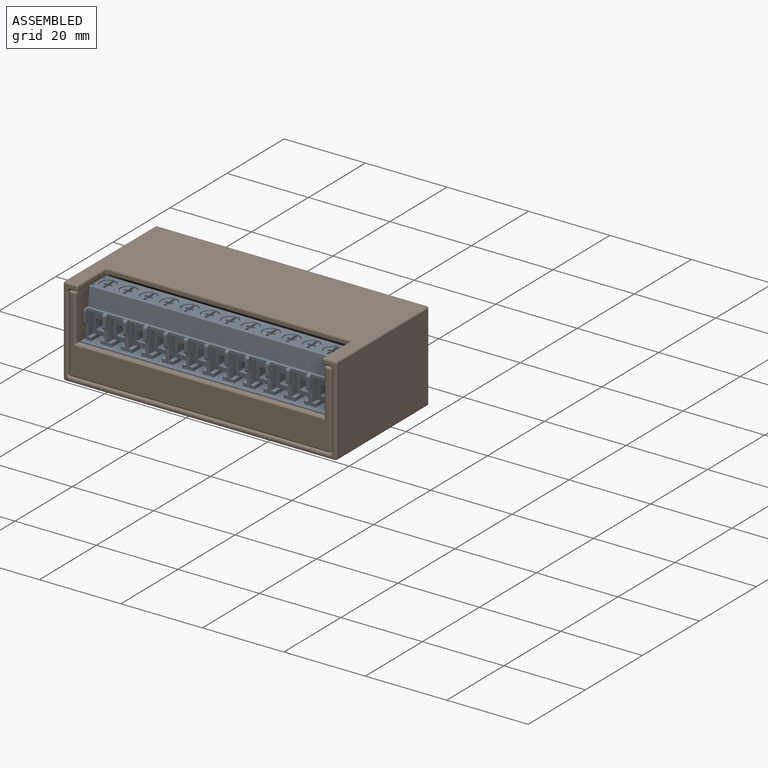
[diagram: assembled view]
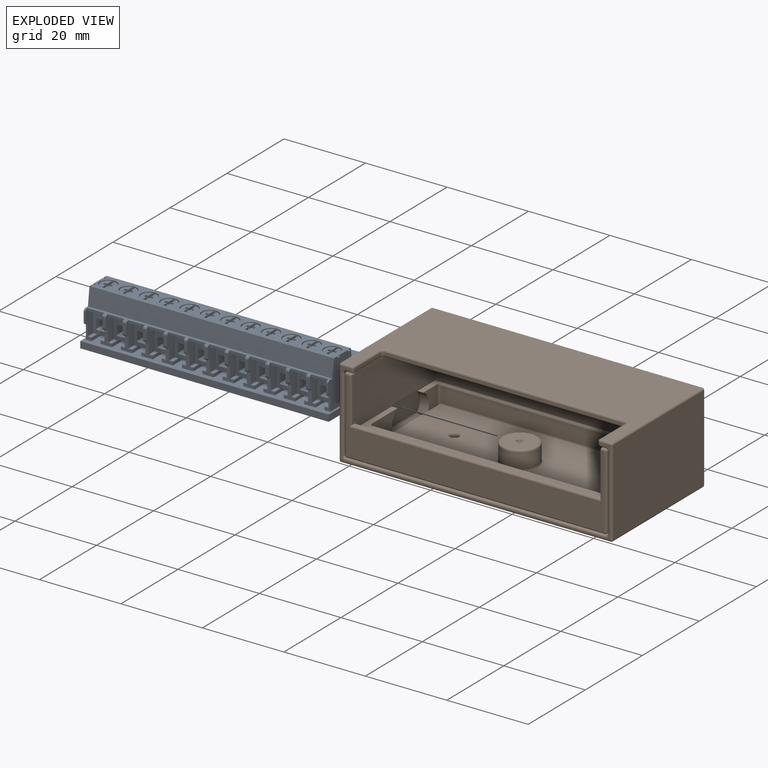
[diagram: exploded view]
GUIDED TOUR — FREECAD ASSEMBLY "pcb-led-lights"

This assembly has 2 components, labeled P0..P1 below (a component is one placed body or linked part; the same part can appear more than once), held together by 0 modeled joints plus 1 derived contact edge. A joint is a constraint between two components; its type names the relative motion it leaves free:
  CONTACT — a derived adjacency edge — the two components touch in the source model (clearance under 2% of the assembly's diagonal); it is measured from the geometry, not a modeled constraint.
Axis/direction vectors are unit vectors and 'through' points are millimeter coordinates, both in the assembly's world frame.

MATES
  1. CONTACT "contact_0_1": P0 <-> P1, contact direction (1.000, 0.000, 0.000) through (65.04, -45.53, -1.72) mm (derived from contact, not a modeled constraint)

ASSEMBLY ORDER
  1. P0 — the base component [order heuristic]
  2. P1 [order heuristic]
Order-tag legend:
  [order heuristic] — this assembly is geometrically interlocked (no collision-free removal order exists), so components are listed in mate-graph order; insertion feasibility is not verified.

Of the 2 components, 1 carries a construction recipe — the FreeCAD feature program (sketches with constraints, then the solid features that consume them) that regenerates the part from scratch, quoted from this document or from the linked companion document it references; the rest are supplied as boundary geometry only. The tour below walks the components in assembly order: each is shown spotlighted twice — in the assembled view, then in the exploded view, where a leader line traces a displaced component back to its assembled socket (components that stay in place when exploded have no leader line; saturated green if recipe-attached, orange if geometry-only; every other component desaturated gray) — followed by its recipe or geometry summary and the mates that hold it.
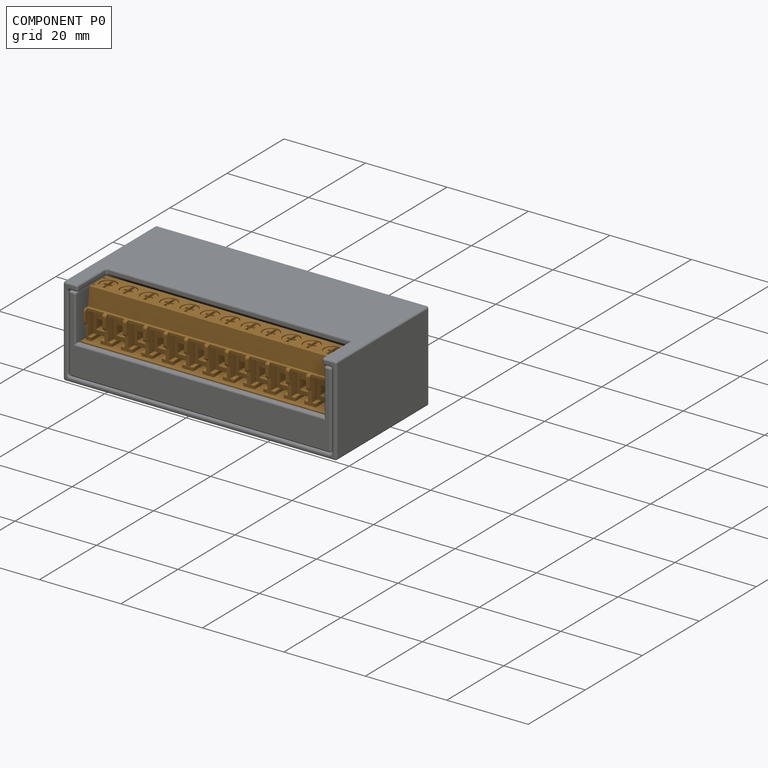
[diagram: component P0 — assembled]
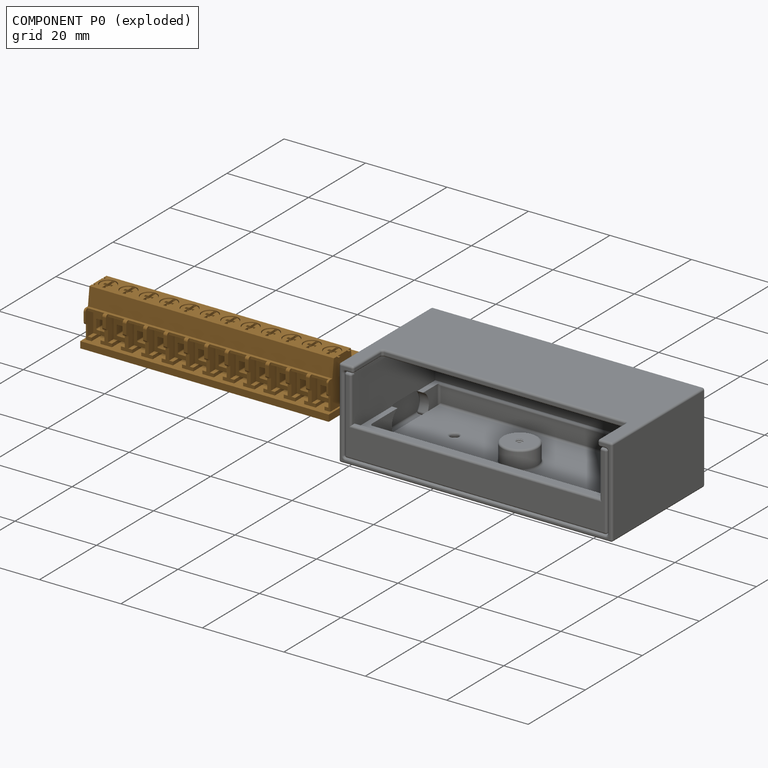
[diagram: component P0 — exploded]
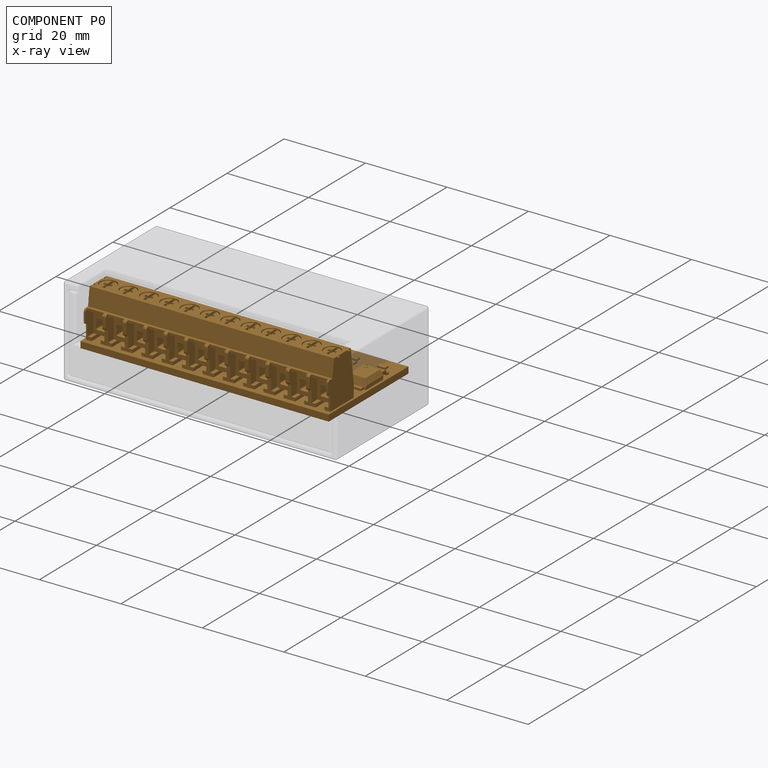
[diagram: component P0 — x-ray view]
COMPONENT P0 — geometry summary ("pcb-led-lights"; no construction recipe available for this part):
  bounding box: 61.1 x 28.0 x 17.7 mm
  tessellated surface: 126,906 triangles
  volume: 8361 mm^3 (28% of its bounding box)
Held by: resting contact with P1 (derived edge).
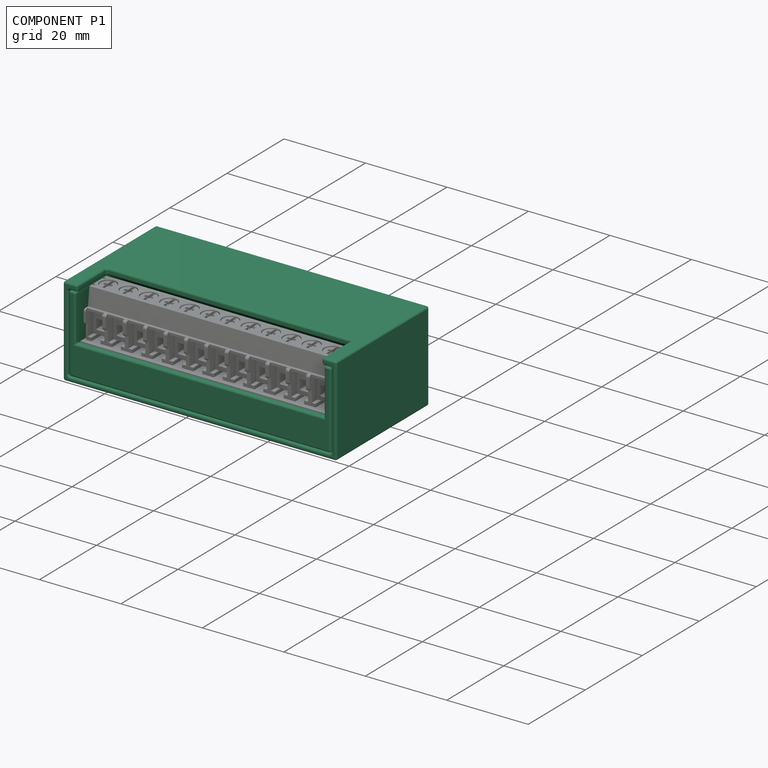
[diagram: component P1 — assembled]
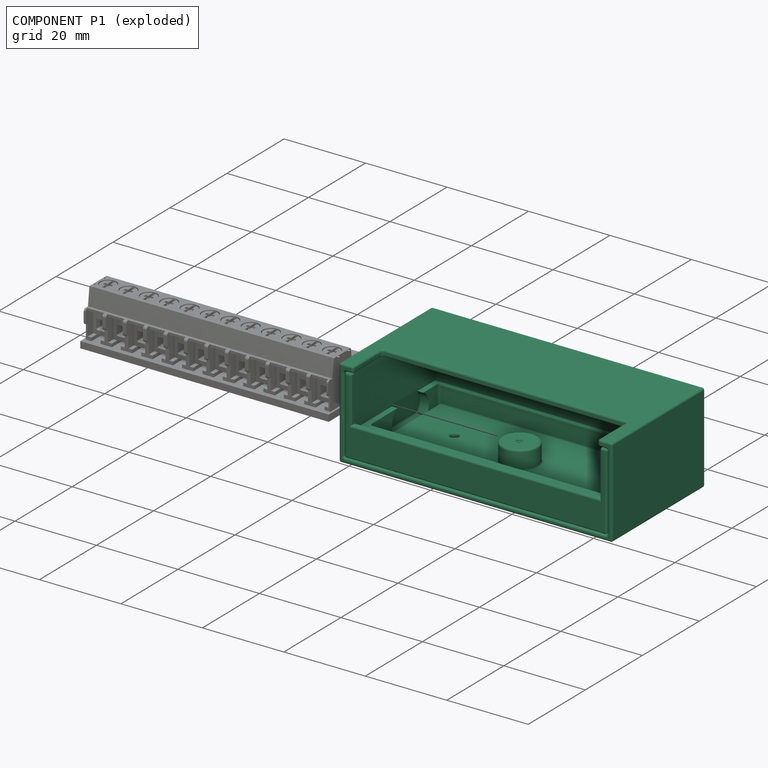
[diagram: component P1 — exploded]
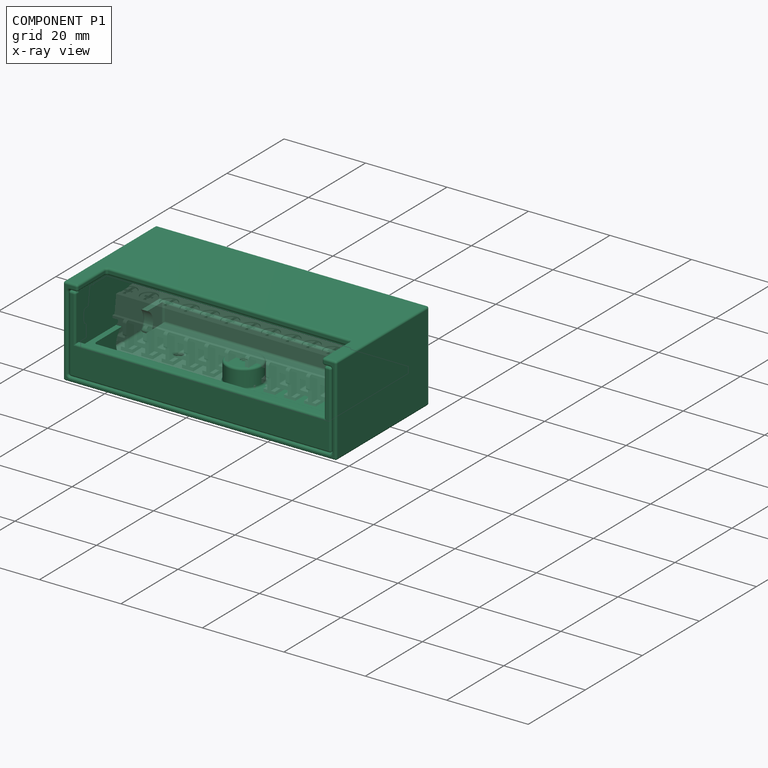
[diagram: component P1 — x-ray view]
COMPONENT P1 — recipe-attached ("Box", modeled in this document).
Held by: resting contact with P0 (derived edge).
Construction recipe (the document's own serialized feature program — sketch geometry with constraints, then the solid features built on it; lengths are millimeters unless a unit is written):

FEATURE [PartDesign::SubShapeBinder] Binder  label="PCB Binder"
  BindCopyOnChange = 0
  BindMode = 0
  ClaimChildren = false
  Context = -> Part [Body.Binder.]
  Fuse = false
  MakeFace = true
  OffsetFill = false
  OffsetIntersection = false
  OffsetJoinType = 0
  OffsetOpenResult = false
  PartialLoad = false
  Refine = true
  Relative = true
  Support = -> [Board_8cc4]
  _Version = 2
FEATURE [Sketcher::SketchObject] Sketch
  ArcFitTolerance = 1e-06
  AttachmentSupport = -> [Binder]
  ExternalGeometry = -> [Binder]
  FullyConstrained = true
  MakeInternals = false
  MapMode = 5
  Placement = pos=(-2.77546e-07,2.43e-14,-6.34952) rot=(1,0,0;3.14159rad)
  expr: Constraints[17] = .Constraints.slack
  expr: Constraints[18] = .Constraints.slack
  expr: Constraints[19] = .Constraints.slack
  expr: Constraints[20] = <<settings>>.thickness
  expr: Constraints[21] = <<settings>>.thickness
  expr: Constraints[22] = <<settings>>.thickness
  expr: Constraints[23] = <<settings>>.thickness
  sketch-geometry (8):
    g0: LineSegment StartX=95.5 StartY=60.5 StartZ=0 EndX=33.5 EndY=60.5 EndZ=0
    g1: LineSegment StartX=33.5 StartY=60.5 StartZ=0 EndX=33.5 EndY=31.5 EndZ=0
    g2: LineSegment StartX=33.5 StartY=31.5 StartZ=0 EndX=95.5 EndY=31.5 EndZ=0
    g3: LineSegment StartX=95.5 StartY=31.5 StartZ=0 EndX=95.5 EndY=60.5 EndZ=0
    g4: LineSegment StartX=96.7 StartY=61.7 StartZ=0 EndX=32.3 EndY=61.7 EndZ=0
    g5: LineSegment StartX=32.3 StartY=61.7 StartZ=0 EndX=32.3 EndY=30.3 EndZ=0
    g6: LineSegment StartX=32.3 StartY=30.3 StartZ=0 EndX=96.7 EndY=30.3 EndZ=0
    g7: LineSegment StartX=96.7 StartY=30.3 StartZ=0 EndX=96.7 EndY=61.7 EndZ=0
  constraints (24):
    c: Coincident(g0,g1)
    c: Coincident(g1,g2)
    c: Coincident(g2,g3)
    c: Coincident(g3,g0)
    c: Horizontal(g0)
    c: Horizontal(g2)
    c: Vertical(g1)
    c: Vertical(g3)
    c: Coincident(g4,g5)
    c: Coincident(g5,g6)
    c: Coincident(g6,g7)
    c: Coincident(g7,g4)
    c: Horizontal(g4)
    c: Horizontal(g6)
    c: Vertical(g5)
    c: Vertical(g7)
    c: Distance(g-3,g3) = 0.5  'slack'
    c: Distance(g-3,g0) = 0.5
    c: Distance(g-4,g1) = 0.5
    c: Distance(g-4,g2) = 0.5
    c: Distance(g1,g5) = 1.2
    c: Distance(g1,g6) = 1.2
    c: Distance(g0,g7) = 1.2
    c: Distance(g0,g4) = 1.2
FEATURE [PartDesign::Pad] Pad
  Direction = (-4.37114e-08,3.8e-15,-1)
  Length = 10
  Length2 = 10
  Profile = -> Sketch
  ReferenceAxis = -> Sketch [N_Axis]
  Refine = true
  Suppressed = false
  Type = 3
  UpToFace = -> Binder [Face685]
FEATURE [Sketcher::SketchObject] Sketch001
  ArcFitTolerance = 1e-06
  AttachmentSupport = -> [Pad]
  ExternalGeometry = -> [Pad]
  FullyConstrained = true
  MakeInternals = false
  MapMode = 5
  Placement = pos=(-2.77546e-07,2.43e-14,-6.34952) rot=(1,0,0;3.14159rad)
  sketch-geometry (4):
    g0: LineSegment StartX=32.3 StartY=30.3 StartZ=0 EndX=96.7 EndY=30.3 EndZ=0
    g1: LineSegment StartX=96.7 StartY=30.3 StartZ=0 EndX=96.7 EndY=61.7 EndZ=0
    g2: LineSegment StartX=96.7 StartY=61.7 StartZ=0 EndX=32.3 EndY=61.7 EndZ=0
    g3: LineSegment StartX=32.3 StartY=61.7 StartZ=0 EndX=32.3 EndY=30.3 EndZ=0
  constraints (10):
    c: Coincident(g0,g1)
    c: Coincident(g1,g2)
    c: Coincident(g2,g3)
    c: Coincident(g3,g0)
    c: Horizontal(g0)
    c: Horizontal(g2)
    c: Vertical(g1)
    c: Vertical(g3)
    c: Coincident(g1,g-3)
    c: Coincident(g0,g-4)
FEATURE [PartDesign::Pad] Pad001
  BaseFeature = -> Pad
  Direction = (-4.37114e-08,3.8e-15,-1)
  Length = 1.2
  Length2 = 10
  Profile = -> Sketch001
  ReferenceAxis = -> Sketch001 [N_Axis]
  Refine = true
  Suppressed = false
  Type = 0
  expr: Length = <<settings>>.thickness
FEATURE [Sketcher::SketchObject] Sketch002
  ArcFitTolerance = 1e-06
  AttachmentSupport = -> [Binder]
  ExternalGeometry = -> [Binder,Pad]
  FullyConstrained = true
  MakeInternals = false
  MapMode = 5
  Placement = pos=(0,0,-1.6) rot=(1,0,0;3.14159rad)
  sketch-geometry (12):
    g0: Circle CenterX=64 CenterY=45.3925 CenterZ=0 NormalX=0 NormalY=0 NormalZ=1 AngleXU=0 Radius=4.37739
    g1: LineSegment StartX=95.5 StartY=60.5 StartZ=0 EndX=33.5 EndY=60.5 EndZ=0
    g2: LineSegment StartX=33.5 StartY=60.5 StartZ=0 EndX=33.5 EndY=31.5 EndZ=0
    g3: LineSegment StartX=33.5 StartY=31.5 StartZ=0 EndX=95.5 EndY=31.5 EndZ=0
    g4: LineSegment StartX=95.5 StartY=31.5 StartZ=0 EndX=95.5 EndY=60.5 EndZ=0
    g5: LineSegment StartX=34.9038 StartY=32.223 StartZ=0 EndX=93.65 EndY=32.223 EndZ=0
    g6: LineSegment StartX=93.65 StartY=32.223 StartZ=0 EndX=93.65 EndY=56.15 EndZ=0
    g7: LineSegment StartX=93.65 StartY=56.15 StartZ=0 EndX=34.9038 EndY=56.15 EndZ=0
    g8: LineSegment StartX=34.9038 StartY=56.15 StartZ=0 EndX=34.9038 EndY=32.223 EndZ=0
    g9: LineSegment [constr] StartX=93.65 StartY=54.5 StartZ=0 EndX=92.65 EndY=54.5 EndZ=0
    g10: LineSegment [constr] StartX=92 StartY=56.15 StartZ=0 EndX=92 EndY=55.15 EndZ=0
    g11: LineSegment [constr] StartX=39.8146 StartY=32.223 StartZ=0 EndX=39.8146 EndY=33.223 EndZ=0
  constraints (35):
    c: Coincident(g0,g-3)
    c: Tangent(g0,g-4)
    c: Coincident(g1,g2)
    c: Coincident(g2,g3)
    c: Coincident(g3,g4)
    c: Coincident(g4,g1)
    c: Horizontal(g1)
    c: Horizontal(g3)
    c: Vertical(g2)
    c: Vertical(g4)
    c: Coincident(g2,g-8)
    c: Coincident(g-7,g1)
    c: Coincident(g5,g6)
    c: Coincident(g6,g7)
    c: Coincident(g7,g8)
    c: Coincident(g8,g5)
    c: Horizontal(g5)
    c: Horizontal(g7)
    c: Vertical(g6)
    c: Vertical(g8)
    c: PointOnObject(g-9,g8)
    c: PointOnObject(g9,g6)
    c: PointOnObject(g9,g-5)
    c: Horizontal(g9)
    c: PointOnObject(g10,g7)
    c: PointOnObject(g10,g-5)
    c: Perpendicular(g-5,g10)
    c: Perpendicular(g-5,g9)
    c: Equal(g10,g9)
    c: DistanceY(g10,g10) = 1
    c: Coincident(g11,g-10)
    c: PointOnObject(g11,g5)
    c: Equal(g10,g11)
    c: Perpendicular(g5,g11)
    c: Perpendicular(g10,g7)
FEATURE [Sketcher::SketchObject] Sketch010
  ArcFitTolerance = 1e-06
  AttachmentSupport = -> [Pad001]
  ExternalGeometry = -> [Binder]
  FullyConstrained = true
  MakeInternals = false
  MapMode = 5
  Placement = pos=(-3.3e-07,2.89e-14,-7.54952) rot=(1,0,0;3.14159rad)
  sketch-geometry (1):
    g0: Circle CenterX=45.7476 CenterY=42.2305 CenterZ=0 NormalX=0 NormalY=0 NormalZ=1 AngleXU=0 Radius=1
  constraints (2):
    c: Symmetric(g-4,g-3,g0)
    c: Diameter(g0) = 2
FEATURE [PartDesign::Pocket] Pocket002
  BaseFeature = -> Pad001
  Direction = (4.37114e-08,-3.8e-15,1)
  Length = 5
  Length2 = 5
  Profile = -> Sketch010
  ReferenceAxis = -> Sketch010 [N_Axis]
  Refine = true
  Suppressed = false
  Type = 2
FEATURE [PartDesign::Pad] Pad002  label="holder"
  BaseFeature = -> Pocket002
  Direction = (0,0,-1)
  Length = 10
  Length2 = 10
  Profile = -> Sketch002
  ReferenceAxis = -> Sketch002 [N_Axis]
  Refine = true
  Suppressed = false
  Type = 3
  UpToFace = -> Pad001 [Face8]
FEATURE [Sketcher::SketchObject] Sketch003
  ArcFitTolerance = 1e-06
  AttachmentSupport = -> [Pad002]
  ExternalGeometry = -> [Pad002,Binder]
  FullyConstrained = true
  MakeInternals = false
  MapMode = 5
  Placement = pos=(0,-61.7,-2.338e-13) rot=(1,0,0;1.5708rad)
  sketch-geometry (4):
    g0: LineSegment StartX=34 StartY=0 StartZ=0 EndX=95 EndY=0 EndZ=0
    g1: LineSegment StartX=95 StartY=0 StartZ=0 EndX=95 EndY=11.4 EndZ=0
    g2: LineSegment StartX=95 StartY=11.4 StartZ=0 EndX=34 EndY=11.4 EndZ=0
    g3: LineSegment StartX=34 StartY=11.4 StartZ=0 EndX=34 EndY=0 EndZ=0
  constraints (10):
    c: Coincident(g0,g1)
    c: Coincident(g1,g2)
    c: Coincident(g2,g3)
    c: Coincident(g3,g0)
    c: Horizontal(g2)
    c: Vertical(g1)
    c: Vertical(g3)
    c: Coincident(g0,g-4)
    c: PointOnObject(g1,g-3)
    c: Coincident(g0,g-5)
FEATURE [PartDesign::Pocket] Pocket
  BaseFeature = -> Pad002
  Direction = (0,1,3.6e-15)
  Length = 5
  Length2 = 5
  Profile = -> Sketch003
  ReferenceAxis = -> Sketch003 [N_Axis]
  Refine = true
  Suppressed = false
  Type = 2
FEATURE [Sketcher::SketchObject] Sketch004
  ArcFitTolerance = 1e-06
  AttachmentSupport = -> [Pocket]
  ExternalGeometry = -> [Binder]
  FullyConstrained = true
  MakeInternals = false
  MapMode = 5
  Placement = pos=(32.3,0,-1.41188e-06) rot=(0.57735,-0.57735,-0.57735;2.0944rad)
  sketch-geometry (9):
    g0: ArcOfCircle CenterX=45.2305 CenterY=-4.76952 CenterZ=0 NormalX=0 NormalY=0 NormalZ=1 AngleXU=0 Radius=3.5 StartAngle=4.71239 EndAngle=7.85398
    g1: ArcOfCircle CenterX=39.2305 CenterY=-4.76952 CenterZ=0 NormalX=0 NormalY=0 NormalZ=1 AngleXU=0 Radius=3.5 StartAngle=1.5708 EndAngle=4.71239
    g2: LineSegment StartX=45.2305 StartY=-8.26952 StartZ=0 EndX=39.2305 EndY=-8.26952 EndZ=0
    g3: LineSegment StartX=45.2305 StartY=-1.26952 StartZ=0 EndX=39.2305 EndY=-1.26952 EndZ=0
    g4: LineSegment [constr] StartX=39.2305 StartY=-4.76952 StartZ=0 EndX=45.2305 EndY=-4.76952 EndZ=0
    g5: LineSegment [constr] StartX=39.2305 StartY=-4.76952 StartZ=0 EndX=37.7605 EndY=-4.46952 EndZ=0
    g6: LineSegment [constr] StartX=46.7005 StartY=-5.06952 StartZ=0 EndX=45.2305 EndY=-4.76952 EndZ=0
    g7: LineSegment [constr] StartX=39.2305 StartY=-4.76952 StartZ=0 EndX=35.7305 EndY=-4.76952 EndZ=0
    g8: LineSegment [constr] StartX=45.2305 StartY=-4.76952 StartZ=0 EndX=48.7305 EndY=-4.76952 EndZ=0
  constraints (21):
    c: Tangent(g0,g2) = 1.5708
    c: Tangent(g0,g3) = -1.5708
    c: Tangent(g1,g2) = 1.5708
    c: Tangent(g1,g3) = -1.5708
    c: Equal(g0,g1)
    c: Coincident(g4,g1)
    c: Coincident(g4,g0)
    c: Symmetric(g-3,g-4,g4)
    c: Coincident(g5,g1)
    c: Coincident(g5,g-7)
    c: Coincident(g6,g-9)
    c: Coincident(g6,g0)
    c: Equal(g5,g6)
    c: Coincident(g7,g1)
    c: PointOnObject(g7,g1)
    c: Horizontal(g7)
    c: Coincident(g8,g0)
    c: Horizontal(g8)
    c: PointOnObject(g8,g0)
    c: DistanceX(g7,g8) = 13
    c: DistanceY(g0,g0) = 7
FEATURE [PartDesign::Pocket] Pocket001
  BaseFeature = -> Pocket
  Direction = (1,-2e-16,-4.37114e-08)
  Length = 0
  Length2 = 5
  Profile = -> Sketch004
  ReferenceAxis = -> Sketch004 [N_Axis]
  Refine = true
  Suppressed = false
  Type = 3
  UpToFace = -> Binder [Face4268]
FEATURE [PartDesign::Fillet] Fillet
  Base = -> Pocket001 [Face4,Face27,Face1,Face2,Face5,Face3,Face10,Face23,Face9,Edge69,Face24,Face25]
  BaseFeature = -> Pocket001
  Radius = 0.5
  Refine = true
  SupportTransform = false
  Suppressed = false
  UseAllEdges = false
  expr: Radius = <<settings>>.filet
FEATURE [PartDesign::ShapeBinder] ShapeBinder
  Support = -> [Pad002]
  TraceSupport = false
FEATURE [Sketcher::SketchObject] Sketch005
  ArcFitTolerance = 1e-06
  AttachmentSupport = -> [ShapeBinder]
  ExternalGeometry = -> [ShapeBinder]
  FullyConstrained = true
  MakeInternals = false
  MapMode = 5
  Placement = pos=(0,-30.3,-1.233e-13) rot=(0,0.707107,0.707107;3.14159rad)
  expr: Constraints[16] = <<settings>>.thickness
  expr: Constraints[17] = <<settings>>.thickness
  expr: Constraints[18] = <<settings>>.thickness
  expr: Constraints[20] = <<settings>>.slack
  expr: Constraints[21] = <<settings>>.slack
  expr: Constraints[22] = <<settings>>.slack
  expr: Constraints[23] = <<settings>>.slack
  sketch-geometry (8):
    g0: LineSegment StartX=-32.15 StartY=11.55 StartZ=0 EndX=-96.85 EndY=11.55 EndZ=0
    g1: LineSegment StartX=-96.85 StartY=11.55 StartZ=0 EndX=-96.85 EndY=-7.69952 EndZ=0
    g2: LineSegment StartX=-96.85 StartY=-7.69952 StartZ=0 EndX=-32.15 EndY=-7.69952 EndZ=0
    g3: LineSegment StartX=-32.15 StartY=-7.69952 StartZ=0 EndX=-32.15 EndY=11.55 EndZ=0
    g4: LineSegment StartX=-30.95 StartY=13.13 StartZ=0 EndX=-98.05 EndY=13.13 EndZ=0
    g5: LineSegment StartX=-98.05 StartY=13.13 StartZ=0 EndX=-98.05 EndY=-8.89952 EndZ=0
    g6: LineSegment StartX=-98.05 StartY=-8.89952 StartZ=0 EndX=-30.95 EndY=-8.89952 EndZ=0
    g7: LineSegment StartX=-30.95 StartY=-8.89952 StartZ=0 EndX=-30.95 EndY=13.13 EndZ=0
  constraints (24):
    c: Coincident(g0,g1)
    c: Coincident(g1,g2)
    c: Coincident(g2,g3)
    c: Coincident(g3,g0)
    c: Horizontal(g0)
    c: Horizontal(g2)
    c: Vertical(g1)
    c: Vertical(g3)
    c: Coincident(g4,g5)
    c: Coincident(g5,g6)
    c: Coincident(g6,g7)
    c: Coincident(g7,g4)
    c: Horizontal(g4)
    c: Horizontal(g6)
    c: Vertical(g5)
    c: Vertical(g7)
    c: DistanceX(g0,g4) = 1.2
    c: DistanceX(g5,g1) = 1.2
    c: DistanceY(g5,g1) = 1.2
    c: Distance(g0,g4) = 1.58
    c: Distance(g-6,g0) = 0.15
    c: Distance(g-6,g3) = 0.15
    c: Distance(g-5,g1) = 0.15
    c: Distance(g-5,g2) = 0.15
FEATURE [PartDesign::Pad] Pad003
  Direction = (0,1,4e-15)
  Length = 10
  Length2 = 10
  Profile = -> Sketch005
  ReferenceAxis = -> Sketch005 [N_Axis]
  Refine = true
  Suppressed = false
  Type = 3
  UpToFace = -> Pad002 [Face5]
FEATURE [Sketcher::SketchObject] Sketch006
  ArcFitTolerance = 1e-06
  AttachmentSupport = -> [Pad003]
  ExternalGeometry = -> [Pad003]
  FullyConstrained = true
  MakeInternals = false
  MapMode = 5
  Placement = pos=(0,-30.3,-1.224e-13) rot=(0,0.707107,0.707107;3.14159rad)
  sketch-geometry (4):
    g0: LineSegment StartX=-98.05 StartY=-8.89952 StartZ=0 EndX=-30.95 EndY=-8.89952 EndZ=0
    g1: LineSegment StartX=-30.95 StartY=-8.89952 StartZ=0 EndX=-30.95 EndY=13.13 EndZ=0
    g2: LineSegment StartX=-30.95 StartY=13.13 StartZ=0 EndX=-98.05 EndY=13.13 EndZ=0
    g3: LineSegment StartX=-98.05 StartY=13.13 StartZ=0 EndX=-98.05 EndY=-8.89952 EndZ=0
  constraints (10):
    c: Coincident(g0,g1)
    c: Coincident(g1,g2)
    c: Coincident(g2,g3)
    c: Coincident(g3,g0)
    c: Horizontal(g0)
    c: Horizontal(g2)
    c: Vertical(g1)
    c: Vertical(g3)
    c: Coincident(g0,g-3)
    c: Coincident(g1,g-4)
FEATURE [PartDesign::Pad] Pad004
  BaseFeature = -> Pad003
  Direction = (0,1,4e-15)
  Length = 1.2
  Length2 = 10
  Profile = -> Sketch006
  ReferenceAxis = -> Sketch006 [N_Axis]
  Refine = true
  Suppressed = false
  Type = 0
  expr: Length = <<settings>>.thickness
FEATURE [Sketcher::SketchObject] Sketch007
  ArcFitTolerance = 1e-06
  AttachmentSupport = -> [Fillet]
  ExternalGeometry = -> [Fillet]
  FullyConstrained = false
  MakeInternals = false
  MapMode = 5
  Placement = pos=(0,0,-1.6) rot=(0,0,1;0rad)
  sketch-geometry (1):
    g0: Circle CenterX=64 CenterY=-45.3925 CenterZ=0 NormalX=0 NormalY=0 NormalZ=1 AngleXU=0 Radius=0.378541
  constraints (1):
    c: Coincident(g0,g-3)
FEATURE [PartDesign::Hole] Hole
  BaseFeature = -> Fillet
  CustomThreadClearance = 0
  Depth = 149
  DepthType = 0
  Diameter = 1.6
  DrillForDepth = false
  DrillPoint = 1
  DrillPointAngle = 118
  HoleCutCountersinkAngle = 90
  HoleCutCustomValues = false
  HoleCutDepth = 0
  HoleCutDiameter = 6.1
  HoleCutType = 0
  ModelThread = true
  Profile = -> Sketch007
  Refine = true
  Suppressed = false
  Tapered = false
  TaperedAngle = 90
  ThreadClass = 3
  ThreadDepth = 149
  ThreadDepthType = 0
  ThreadDirection = 0
  ThreadFit = 0
  ThreadSize = 6
  ThreadType = 1
  Threaded = true
  UseCustomThreadClearance = false
FEATURE [PartDesign::Body] Body  label="Inside"
  AllowCompound = false
  Group = -> [Binder,Sketch,Pad,Sketch001,Pad001,Sketch002,Sketch010,Pocket002,Pad002,Sketch003,Pocket,Sketch004,Pocket001,Fillet,Sketch007,Hole]
  Origin = -> Origin112
  Tip = -> Hole
FEATURE [Sketcher::SketchObject] Sketch009
  ArcFitTolerance = 1e-06
  AttachmentSupport = -> [Pad004]
  ExternalGeometry = -> [ShapeBinder]
  FullyConstrained = true
  MakeInternals = false
  MapMode = 5
  Placement = pos=(0,3.59e-14,-8.89952) rot=(1,0,0;3.14159rad)
  sketch-geometry (1):
    g0: Circle CenterX=45.7476 CenterY=42.2305 CenterZ=0 NormalX=0 NormalY=0 NormalZ=1 AngleXU=0 Radius=1
  constraints (2):
    c: Coincident(g0,g-3)
    c: Equal(g0,g-3)
FEATURE [PartDesign::Pocket] Pocket003
  BaseFeature = -> Pad004
  Direction = (0,-4e-15,1)
  Length = 5
  Length2 = 5
  Profile = -> Sketch009
  ReferenceAxis = -> Sketch009 [N_Axis]
  Refine = true
  Suppressed = false
  Type = 2
FEATURE [PartDesign::SubShapeBinder] Binder001  label="pcb_Binder001"
  BindCopyOnChange = 0
  BindMode = 0
  ClaimChildren = false
  Context = -> Part [Body001.Binder001.]
  Fuse = false
  MakeFace = true
  OffsetFill = false
  OffsetIntersection = false
  OffsetJoinType = 0
  OffsetOpenResult = false
  PartialLoad = false
  Refine = true
  Relative = true
  Support = -> [Board_8cc4]
  _Version = 2
FEATURE [Sketcher::SketchObject] Sketch011
  ArcFitTolerance = 1e-06
  AttachmentSupport = -> [Pocket003]
  ExternalGeometry = -> [Pocket003,Binder001]
  FullyConstrained = true
  MakeInternals = false
  MapMode = 5
  Placement = pos=(0,-4.62e-14,11.55) rot=(1,0,0;3.14159rad)
  sketch-geometry (4):
    g0: LineSegment StartX=34.5 StartY=51.53 StartZ=0 EndX=94.5 EndY=51.53 EndZ=0
    g1: LineSegment StartX=94.5 StartY=51.53 StartZ=0 EndX=94.5 EndY=61.7 EndZ=0
    g2: LineSegment StartX=94.5 StartY=61.7 StartZ=0 EndX=34.5 EndY=61.7 EndZ=0
    g3: LineSegment StartX=34.5 StartY=61.7 StartZ=0 EndX=34.5 EndY=51.53 EndZ=0
  constraints (10):
    c: Coincident(g0,g1)
    c: Coincident(g1,g2)
    c: Coincident(g2,g3)
    c: Coincident(g3,g0)
    c: Horizontal(g2)
    c: Vertical(g1)
    c: Vertical(g3)
    c: Coincident(g0,g-4)
    c: PointOnObject(g1,g-3)
    c: Coincident(g0,g-5)
FEATURE [PartDesign::Pocket] Pocket004
  BaseFeature = -> Pocket003
  Direction = (0,-4e-15,1)
  Length = 5
  Length2 = 5
  Profile = -> Sketch011
  ReferenceAxis = -> Sketch011 [N_Axis]
  Refine = true
  Suppressed = false
  Type = 0
FEATURE [PartDesign::Fillet] Fillet001
  Base = -> Pocket004 [?Edge1,?Edge2,?Edge3,?Edge4,?Edge5,?Edge7,?Edge6,?Edge9,?Edge10,?Edge11,?Edge12,?Edge8,?Edge13,?Edge14,?Edge15,?Edge16,?Edge17,?Edge18,?Edge19,?Edge20,?Edge21,?Edge22,?Edge23,?Edge24,?Edge25,?Edge26,?Edge27]
  BaseFeature = -> Pocket004
  Radius = 0.5
  Refine = true
  SupportTransform = false
  Suppressed = false
  UseAllEdges = true
  expr: Radius = <<settings>>.filet
FEATURE [PartDesign::Body] Body001  label="Outside"
  AllowCompound = false
  Group = -> [ShapeBinder,Sketch005,Pad003,Sketch006,Pad004,Sketch009,Pocket003,Sketch011,Pocket004,Fillet001,Binder001]
  Origin = -> Origin113
  Tip = -> Fillet001
PROVENANCE & LICENSES
Assembly and component geometry: a FreeCAD (.FCStd) document from a public repository crawl; components, placements and joints were extracted with FreeCAD and each solid tessellated.
Construction recipes: the document's own serialized feature recipes (and, for linked parts, the recipes of companion documents from the same project).
License: apache-2.0.
Joints: native FreeCAD joints and A2plus constraints are mapped to standard mate types; edges marked 'derived from contact' connect touching components and are measured from the geometry, not modeled.
Verification: 1 of this assembly's 2 components carries a construction recipe (1 from this document itself); the rest are geometry-only. Every component's tessellation passed the extraction mesh gates (mesh-volume checksum against the B-rep where available, bounding-box inflation <= 2%).
Renders: orthographic iso camera (az 35 / el 25); the floor grid conveys scale (grid pitch printed in each image; no ruler). In the exploded view each component is displaced by its stored offset vector: the offsets alone carry the explosion direction (mate normal/axis signs are not orientation cues and do not encode it), and separation distances are assigned per mate-chain, not proportionally to assembly-order depth.
